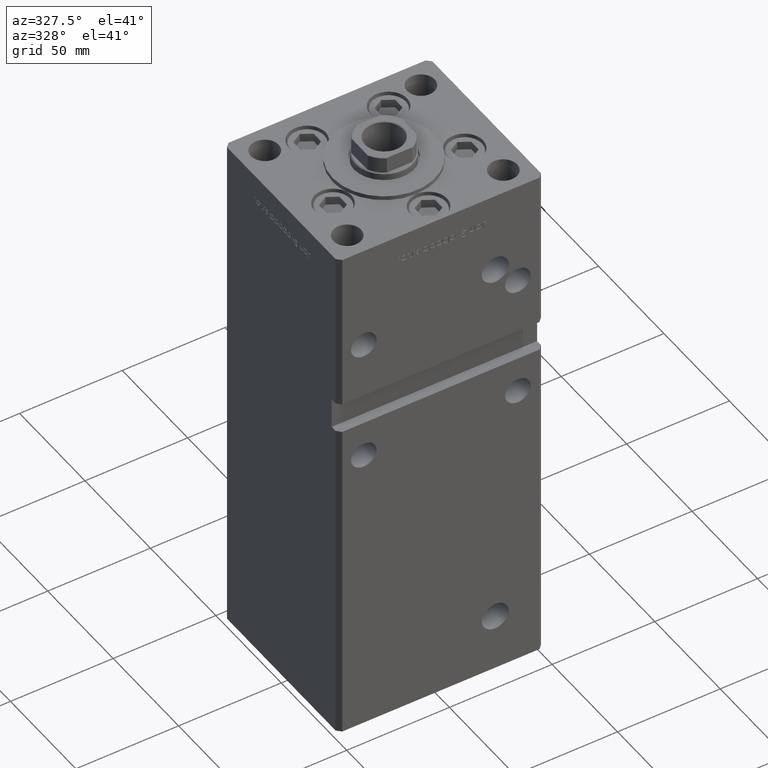
[diagram: clean part render]
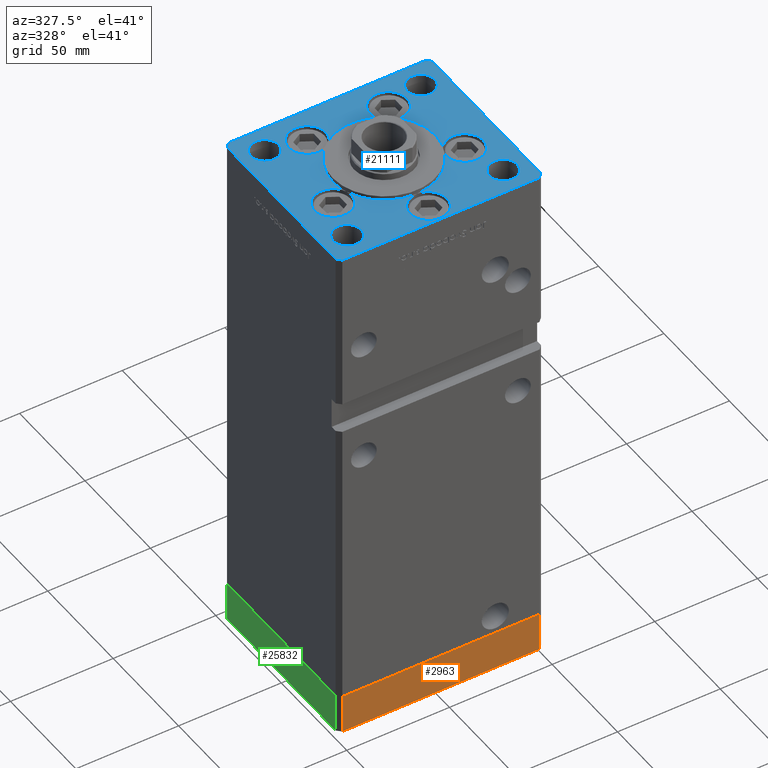
[diagram: same view with three faces highlighted in distinct colors, each labeled with its STEP entity id]
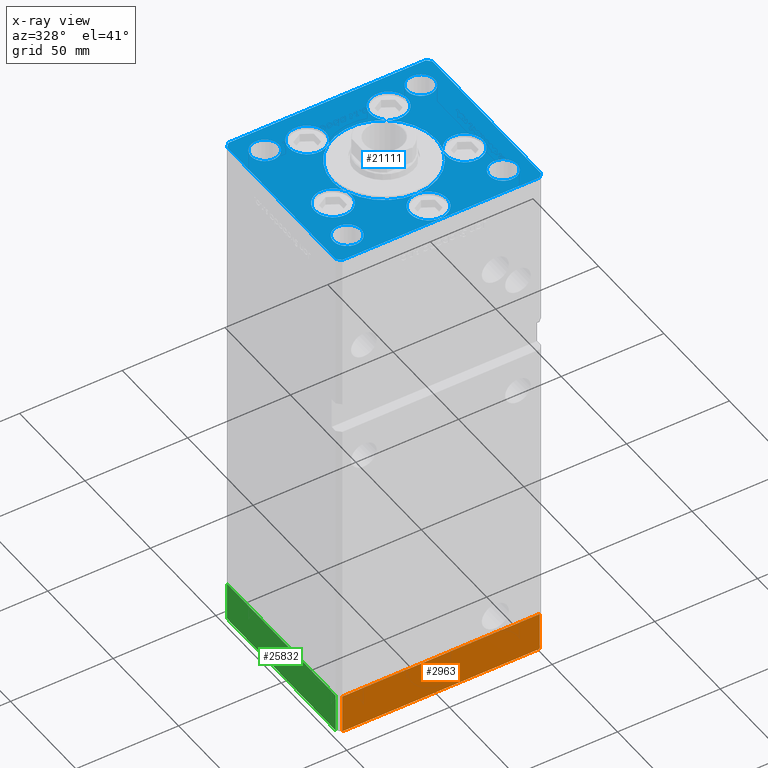
[diagram: x-ray of the same camera — body ghosted, the three highlighted faces saturated]
A machine part, auxiliary view with three faces highlighted in distinct colors.
The next image is the same camera in x-ray (body ghosted, the three faces saturated) — at least one of them is partly hidden behind the body in this view.
Their STEP definitions:

[orange] entity #2963 — the highlighted planar face has unit normal (0, -1, -0).
#172 = VERTEX_POINT ( 'NONE', #3206 ) ;
#551 = EDGE_CURVE ( 'NONE', #24791, #22917, #25624, .T. ) ;
#1128 = EDGE_CURVE ( 'NONE', #172, #24791, #41357, .T. ) ;
#2963 = ADVANCED_FACE ( 'NONE', ( #13362 ), #47674, .T. ) ;
#3206 = CARTESIAN_POINT ( 'NONE',  ( -47.99999999999999289, -43.50000000000001421, -19.00000000000000000 ) ) ;
#5318 = ORIENTED_EDGE ( 'NONE', *, *, #24260, .T. ) ;
#9600 = CARTESIAN_POINT ( 'NONE',  ( -47.99999999999999289, -43.50000000000001421, -19.00000000000000000 ) ) ;
#13362 = FACE_OUTER_BOUND ( 'NONE', #43471, .T. ) ;
#14062 = LINE ( 'NONE', #46605, #45739 ) ;
#14321 = DIRECTION ( 'NONE',  ( 0.000000000000000000, 0.000000000000000000, 1.000000000000000000 ) ) ;
#14949 = VECTOR ( 'NONE', #20790, 1000.000000000000000 ) ;
#19037 = VECTOR ( 'NONE', #26161, 1000.000000000000000 ) ;
#20790 = DIRECTION ( 'NONE',  ( 1.000000000000000000, 0.000000000000000000, 0.000000000000000000 ) ) ;
#20936 = CARTESIAN_POINT ( 'NONE',  ( -47.99999999999999289, -43.50000000000001421, -19.00000000000000000 ) ) ;
#21843 = LINE ( 'NONE', #41996, #14949 ) ;
#21856 = CARTESIAN_POINT ( 'NONE',  ( -47.99999999999999289, -43.50000000000001421, 0.000000000000000000 ) ) ;
#22786 = ORIENTED_EDGE ( 'NONE', *, *, #1128, .F. ) ;
#22917 = VERTEX_POINT ( 'NONE', #35061 ) ;
#24260 = EDGE_CURVE ( 'NONE', #28784, #22917, #14062, .T. ) ;
#24698 = ORIENTED_EDGE ( 'NONE', *, *, #27667, .T. ) ;
#24791 = VERTEX_POINT ( 'NONE', #51291 ) ;
#25624 = LINE ( 'NONE', #21856, #19037 ) ;
#26161 = DIRECTION ( 'NONE',  ( 1.000000000000000000, 0.000000000000000000, 0.000000000000000000 ) ) ;
#27251 = DIRECTION ( 'NONE',  ( 0.000000000000000000, -0.000000000000000000, -1.000000000000000000 ) ) ;
#27667 = EDGE_CURVE ( 'NONE', #172, #28784, #21843, .T. ) ;
#28784 = VERTEX_POINT ( 'NONE', #40383 ) ;
#29329 = VECTOR ( 'NONE', #49683, 1000.000000000000000 ) ;
#29765 = DIRECTION ( 'NONE',  ( 0.000000000000000000, -1.000000000000000000, 0.000000000000000000 ) ) ;
#35061 = CARTESIAN_POINT ( 'NONE',  ( 47.99999999999999289, -43.50000000000001421, 0.000000000000000000 ) ) ;
#40383 = CARTESIAN_POINT ( 'NONE',  ( 47.99999999999999289, -43.50000000000001421, -19.00000000000000000 ) ) ;
#41357 = LINE ( 'NONE', #20936, #29329 ) ;
#41996 = CARTESIAN_POINT ( 'NONE',  ( -47.99999999999999289, -43.50000000000001421, -19.00000000000000000 ) ) ;
#43471 = EDGE_LOOP ( 'NONE', ( #43681, #22786, #24698, #5318 ) ) ;
#43681 = ORIENTED_EDGE ( 'NONE', *, *, #551, .F. ) ;
#45739 = VECTOR ( 'NONE', #14321, 1000.000000000000000 ) ;
#46605 = CARTESIAN_POINT ( 'NONE',  ( 47.99999999999999289, -43.50000000000001421, -19.00000000000000000 ) ) ;
#47674 = PLANE ( 'NONE',  #51719 ) ;
#49683 = DIRECTION ( 'NONE',  ( 0.000000000000000000, 0.000000000000000000, 1.000000000000000000 ) ) ;
#51291 = CARTESIAN_POINT ( 'NONE',  ( -47.99999999999999289, -43.50000000000001421, 0.000000000000000000 ) ) ;
#51719 = AXIS2_PLACEMENT_3D ( 'NONE', #9600, #29765, #27251 ) ;

[blue] entity #21111 — the highlighted planar face has unit normal (0, 0, 1).
#309 = AXIS2_PLACEMENT_3D ( 'NONE', #47411, #43127, #39096 ) ;
#796 = DIRECTION ( 'NONE',  ( 0.000000000000000000, 0.000000000000000000, 1.000000000000000000 ) ) ;
#879 = AXIS2_PLACEMENT_3D ( 'NONE', #40290, #39754, #15004 ) ;
#949 = DIRECTION ( 'NONE',  ( 1.000000000000000000, 0.000000000000000000, 0.000000000000000000 ) ) ;
#1319 = DIRECTION ( 'NONE',  ( 0.000000000000000000, 0.000000000000000000, 1.000000000000000000 ) ) ;
#1372 = CIRCLE ( 'NONE', #16806, 6.749999999999999112 ) ;
#1483 = CIRCLE ( 'NONE', #34969, 6.749999999999999112 ) ;
#1599 = CIRCLE ( 'NONE', #42789, 25.00000000000000000 ) ;
#1770 = LINE ( 'NONE', #18179, #10555 ) ;
#1989 = DIRECTION ( 'NONE',  ( 1.000000000000000000, 0.000000000000000000, 0.000000000000000000 ) ) ;
#2031 = FACE_BOUND ( 'NONE', #13630, .T. ) ;
#2519 = CARTESIAN_POINT ( 'NONE',  ( -38.00000000000000711, -31.50000000000000711, 0.000000000000000000 ) ) ;
#2574 = EDGE_CURVE ( 'NONE', #33097, #25883, #7838, .T. ) ;
#2641 = CIRCLE ( 'NONE', #45584, 9.000000000000001776 ) ;
#2706 = CARTESIAN_POINT ( 'NONE',  ( 50.00000000000000000, -41.49999999999992895, 0.000000000000000000 ) ) ;
#2721 = AXIS2_PLACEMENT_3D ( 'NONE', #12228, #11955, #28368 ) ;
#2900 = DIRECTION ( 'NONE',  ( 0.000000000000000000, 0.000000000000000000, 1.000000000000000000 ) ) ;
#3015 = ORIENTED_EDGE ( 'NONE', *, *, #45752, .F. ) ;
#3157 = EDGE_CURVE ( 'NONE', #25883, #20605, #25868, .T. ) ;
#3192 = CARTESIAN_POINT ( 'NONE',  ( 0.000000000000000000, -6.938893903907228378E-15, 0.000000000000000000 ) ) ;
#3235 = VERTEX_POINT ( 'NONE', #37688 ) ;
#3426 = VERTEX_POINT ( 'NONE', #52710 ) ;
#3530 = ORIENTED_EDGE ( 'NONE', *, *, #48327, .F. ) ;
#3572 = CARTESIAN_POINT ( 'NONE',  ( 0.000000000000000000, -6.938893903907228378E-15, 0.000000000000000000 ) ) ;
#3577 = CIRCLE ( 'NONE', #45631, 9.000000000000001776 ) ;
#3652 = AXIS2_PLACEMENT_3D ( 'NONE', #38110, #13905, #25739 ) ;
#3844 = AXIS2_PLACEMENT_3D ( 'NONE', #31564, #15407, #31832 ) ;
#4311 = CARTESIAN_POINT ( 'NONE',  ( 19.82068048781374969, 27.62499999999998934, 0.000000000000000000 ) ) ;
#4381 = LINE ( 'NONE', #45500, #51001 ) ;
#4436 = CARTESIAN_POINT ( 'NONE',  ( -19.82068048781374969, 27.62499999999998934, 0.000000000000000000 ) ) ;
#4602 = CIRCLE ( 'NONE', #15767, 25.00000000000000000 ) ;
#5033 = EDGE_CURVE ( 'NONE', #39456, #20355, #42249, .T. ) ;
#5043 = CARTESIAN_POINT ( 'NONE',  ( -10.82068048781375147, 27.62499999999998934, 0.000000000000000000 ) ) ;
#5143 = CIRCLE ( 'NONE', #35331, 8.999999999999998224 ) ;
#5180 = ORIENTED_EDGE ( 'NONE', *, *, #17089, .T. ) ;
#5185 = CIRCLE ( 'NONE', #24083, 6.749999999999999112 ) ;
#5220 = ORIENTED_EDGE ( 'NONE', *, *, #49229, .F. ) ;
#5289 = CARTESIAN_POINT ( 'NONE',  ( -44.75000000000000000, 31.50000000000000000, 0.000000000000000000 ) ) ;
#5351 = CARTESIAN_POINT ( 'NONE',  ( 44.75000000000000711, -31.50000000000000711, 0.000000000000000000 ) ) ;
#5371 = ORIENTED_EDGE ( 'NONE', *, *, #9953, .F. ) ;
#5683 = CARTESIAN_POINT ( 'NONE',  ( -48.00000000000000000, 43.49999999999997158, 0.000000000000000000 ) ) ;
#5780 = EDGE_CURVE ( 'NONE', #33097, #13847, #9635, .T. ) ;
#5792 = VERTEX_POINT ( 'NONE', #2706 ) ;
#5879 = CARTESIAN_POINT ( 'NONE',  ( -50.00000000000000000, -41.50000000000004263, 0.000000000000000000 ) ) ;
#5909 = AXIS2_PLACEMENT_3D ( 'NONE', #3572, #28057, #44174 ) ;
#5980 = VERTEX_POINT ( 'NONE', #10458 ) ;
#6173 = DIRECTION ( 'NONE',  ( 0.000000000000000000, 0.000000000000000000, 1.000000000000000000 ) ) ;
#6229 = AXIS2_PLACEMENT_3D ( 'NONE', #36114, #52496, #15671 ) ;
#6489 = CARTESIAN_POINT ( 'NONE',  ( -23.05550741379015633, -11.33333333333332860, 0.000000000000000000 ) ) ;
#6917 = DIRECTION ( 'NONE',  ( 0.000000000000000000, 0.000000000000000000, 1.000000000000000000 ) ) ;
#7105 = LINE ( 'NONE', #7646, #29776 ) ;
#7248 = EDGE_CURVE ( 'NONE', #25883, #51566, #32864, .T. ) ;
#7399 = FACE_BOUND ( 'NONE', #42107, .T. ) ;
#7475 = CARTESIAN_POINT ( 'NONE',  ( -25.00000000000000000, -6.938893903907228378E-15, 0.000000000000000000 ) ) ;
#7646 = CARTESIAN_POINT ( 'NONE',  ( 48.00000000000000711, -43.49999999999992184, 0.000000000000000000 ) ) ;
#7650 = ORIENTED_EDGE ( 'NONE', *, *, #41239, .T. ) ;
#7749 = CIRCLE ( 'NONE', #44660, 8.999999999999998224 ) ;
#7781 = CARTESIAN_POINT ( 'NONE',  ( 32.05550741379015989, -11.33333333333332860, 0.000000000000000000 ) ) ;
#7822 = ORIENTED_EDGE ( 'NONE', *, *, #40016, .T. ) ;
#7827 = DIRECTION ( 'NONE',  ( 1.000000000000000000, 0.000000000000000000, 0.000000000000000000 ) ) ;
#7838 = CIRCLE ( 'NONE', #42169, 25.00000000000000000 ) ;
#8003 = VERTEX_POINT ( 'NONE', #33713 ) ;
#8111 = ORIENTED_EDGE ( 'NONE', *, *, #18438, .F. ) ;
#8129 = ORIENTED_EDGE ( 'NONE', *, *, #20881, .F. ) ;
#8234 = CARTESIAN_POINT ( 'NONE',  ( 0.000000000000000000, -6.938893903907228378E-15, 0.000000000000000000 ) ) ;
#8254 = DIRECTION ( 'NONE',  ( 0.000000000000000000, 0.000000000000000000, 1.000000000000000000 ) ) ;
#8275 = CARTESIAN_POINT ( 'NONE',  ( -38.00000000000000711, -31.50000000000000711, 0.000000000000000000 ) ) ;
#8531 = CARTESIAN_POINT ( 'NONE',  ( 31.25000000000000000, 31.50000000000000000, 0.000000000000000000 ) ) ;
#8638 = VECTOR ( 'NONE', #46181, 999.9999999999998863 ) ;
#8693 = ORIENTED_EDGE ( 'NONE', *, *, #40565, .F. ) ;
#8773 = ORIENTED_EDGE ( 'NONE', *, *, #14130, .T. ) ;
#8884 = EDGE_CURVE ( 'NONE', #3426, #34056, #1770, .T. ) ;
#9589 = VERTEX_POINT ( 'NONE', #53156 ) ;
#9624 = CARTESIAN_POINT ( 'NONE',  ( -38.00000000000000000, 31.50000000000000000, 0.000000000000000000 ) ) ;
#9635 = CIRCLE ( 'NONE', #36243, 9.000000000000001776 ) ;
#9746 = ORIENTED_EDGE ( 'NONE', *, *, #7248, .F. ) ;
#9753 = CIRCLE ( 'NONE', #309, 9.000000000000000000 ) ;
#9867 = VECTOR ( 'NONE', #12503, 1000.000000000000000 ) ;
#9886 = EDGE_LOOP ( 'NONE', ( #16960, #29587, #5220, #35883, #3015, #47245, #3530, #25754, #30757, #9746, #8693, #27200, #46546, #24341, #27784, #8111, #25181, #21043, #8129, #29127, #40532, #5371 ) ) ;
#9953 = EDGE_CURVE ( 'NONE', #26033, #39456, #21766, .T. ) ;
#10130 = EDGE_CURVE ( 'NONE', #20605, #29973, #9753, .T. ) ;
#10458 = CARTESIAN_POINT ( 'NONE',  ( 23.05550741379015633, -11.33333333333332682, 0.000000000000000000 ) ) ;
#10555 = VECTOR ( 'NONE', #29488, 1000.000000000000000 ) ;
#10891 = FACE_BOUND ( 'NONE', #9886, .T. ) ;
#11221 = DIRECTION ( 'NONE',  ( 1.000000000000000000, 0.000000000000000000, 0.000000000000000000 ) ) ;
#11650 = DIRECTION ( 'NONE',  ( 0.000000000000000000, 0.000000000000000000, 1.000000000000000000 ) ) ;
#11651 = DIRECTION ( 'NONE',  ( 0.000000000000000000, 0.000000000000000000, 1.000000000000000000 ) ) ;
#11895 = EDGE_CURVE ( 'NONE', #5980, #22736, #49303, .T. ) ;
#11926 = DIRECTION ( 'NONE',  ( 0.000000000000000000, 0.000000000000000000, 1.000000000000000000 ) ) ;
#11955 = DIRECTION ( 'NONE',  ( -0.000000000000000000, 0.000000000000000000, 1.000000000000000000 ) ) ;
#12004 = ORIENTED_EDGE ( 'NONE', *, *, #34899, .T. ) ;
#12200 = EDGE_CURVE ( 'NONE', #29769, #27571, #32868, .T. ) ;
#12211 = AXIS2_PLACEMENT_3D ( 'NONE', #12523, #36480, #41277 ) ;
#12228 = CARTESIAN_POINT ( 'NONE',  ( 0.000000000000000000, 0.000000000000000000, 0.000000000000000000 ) ) ;
#12503 = DIRECTION ( 'NONE',  ( 8.360113137237620037E-17, -1.000000000000000000, 0.000000000000000000 ) ) ;
#12523 = CARTESIAN_POINT ( 'NONE',  ( -19.82068048781374969, 27.62499999999998934, 0.000000000000000000 ) ) ;
#12742 = CARTESIAN_POINT ( 'NONE',  ( 32.05550741379015989, -11.33333333333332860, 0.000000000000000000 ) ) ;
#12920 = CARTESIAN_POINT ( 'NONE',  ( -38.00000000000000000, 31.50000000000000000, 0.000000000000000000 ) ) ;
#13381 = VECTOR ( 'NONE', #27451, 1000.000000000000000 ) ;
#13630 = EDGE_LOOP ( 'NONE', ( #31645, #30264 ) ) ;
#13847 = VERTEX_POINT ( 'NONE', #28145 ) ;
#13905 = DIRECTION ( 'NONE',  ( 0.000000000000000000, 0.000000000000000000, 1.000000000000000000 ) ) ;
#14130 = EDGE_CURVE ( 'NONE', #30044, #42323, #27020, .T. ) ;
#14233 = CIRCLE ( 'NONE', #52865, 25.00000000000000000 ) ;
#14386 = FACE_OUTER_BOUND ( 'NONE', #18215, .T. ) ;
#14526 = EDGE_CURVE ( 'NONE', #44332, #42694, #30134, .T. ) ;
#14710 = DIRECTION ( 'NONE',  ( 0.7071067811865487940, -0.7071067811865463515, 0.000000000000000000 ) ) ;
#15004 = DIRECTION ( 'NONE',  ( 1.000000000000000000, 0.000000000000000000, 0.000000000000000000 ) ) ;
#15389 = DIRECTION ( 'NONE',  ( 1.000000000000000000, 0.000000000000000000, 0.000000000000000000 ) ) ;
#15407 = DIRECTION ( 'NONE',  ( -0.000000000000000000, -0.000000000000000000, -1.000000000000000000 ) ) ;
#15451 = EDGE_CURVE ( 'NONE', #51566, #5980, #3577, .T. ) ;
#15509 = DIRECTION ( 'NONE',  ( 1.000000000000000000, 0.000000000000000000, 0.000000000000000000 ) ) ;
#15597 = DIRECTION ( 'NONE',  ( 1.000000000000000000, 0.000000000000000000, 0.000000000000000000 ) ) ;
#15671 = DIRECTION ( 'NONE',  ( 1.000000000000000000, 0.000000000000000000, 0.000000000000000000 ) ) ;
#15713 = PLANE ( 'NONE',  #2721 ) ;
#15763 = DIRECTION ( 'NONE',  ( 1.000000000000000000, 0.000000000000000000, 0.000000000000000000 ) ) ;
#15767 = AXIS2_PLACEMENT_3D ( 'NONE', #3192, #6173, #18541 ) ;
#16152 = ORIENTED_EDGE ( 'NONE', *, *, #12200, .T. ) ;
#16806 = AXIS2_PLACEMENT_3D ( 'NONE', #52491, #11650, #40410 ) ;
#16960 = ORIENTED_EDGE ( 'NONE', *, *, #26879, .F. ) ;
#17057 = DIRECTION ( 'NONE',  ( 1.000000000000000000, 0.000000000000000000, 0.000000000000000000 ) ) ;
#17089 = EDGE_CURVE ( 'NONE', #40975, #18568, #17413, .T. ) ;
#17220 = ORIENTED_EDGE ( 'NONE', *, *, #37268, .T. ) ;
#17413 = LINE ( 'NONE', #46452, #8638 ) ;
#17716 = CARTESIAN_POINT ( 'NONE',  ( -23.57022603955158502, -8.333333333333332149, 0.000000000000000000 ) ) ;
#17941 = DIRECTION ( 'NONE',  ( -0.000000000000000000, -0.000000000000000000, -1.000000000000000000 ) ) ;
#18079 = CARTESIAN_POINT ( 'NONE',  ( 50.00000000000000000, 41.50000000000000711, 0.000000000000000000 ) ) ;
#18134 = AXIS2_PLACEMENT_3D ( 'NONE', #42600, #39345, #1989 ) ;
#18179 = CARTESIAN_POINT ( 'NONE',  ( -48.00000000000000711, -43.50000000000002842, 0.000000000000000000 ) ) ;
#18215 = EDGE_LOOP ( 'NONE', ( #48321, #37707, #7822, #17220, #5180, #35243, #16152, #12004 ) ) ;
#18423 = AXIS2_PLACEMENT_3D ( 'NONE', #12742, #29147, #45529 ) ;
#18438 = EDGE_CURVE ( 'NONE', #13847, #22310, #2641, .T. ) ;
#18528 = CARTESIAN_POINT ( 'NONE',  ( -19.82068048781374969, 27.62499999999998934, 0.000000000000000000 ) ) ;
#18541 = DIRECTION ( 'NONE',  ( 1.000000000000000000, 0.000000000000000000, 0.000000000000000000 ) ) ;
#18568 = VERTEX_POINT ( 'NONE', #38990 ) ;
#18768 = CARTESIAN_POINT ( 'NONE',  ( 0.000000000000000000, -6.938893903907228378E-15, 0.000000000000000000 ) ) ;
#18917 = DIRECTION ( 'NONE',  ( 1.000000000000000000, 0.000000000000000000, 0.000000000000000000 ) ) ;
#18996 = EDGE_CURVE ( 'NONE', #21657, #21785, #19860, .T. ) ;
#19025 = LINE ( 'NONE', #5879, #35238 ) ;
#19076 = DIRECTION ( 'NONE',  ( 1.000000000000000000, 0.000000000000000000, 0.000000000000000000 ) ) ;
#19514 = LINE ( 'NONE', #32952, #9867 ) ;
#19644 = DIRECTION ( 'NONE',  ( 0.000000000000000000, 0.000000000000000000, 1.000000000000000000 ) ) ;
#19700 = ORIENTED_EDGE ( 'NONE', *, *, #14526, .T. ) ;
#19860 = CIRCLE ( 'NONE', #49869, 6.749999999999999112 ) ;
#20240 = CARTESIAN_POINT ( 'NONE',  ( -28.82068048781374969, 27.62499999999998934, 0.000000000000000000 ) ) ;
#20355 = VERTEX_POINT ( 'NONE', #20240 ) ;
#20605 = VERTEX_POINT ( 'NONE', #27294 ) ;
#20703 = CARTESIAN_POINT ( 'NONE',  ( 0.000000000000000000, -6.938893903907228378E-15, 0.000000000000000000 ) ) ;
#20881 = EDGE_CURVE ( 'NONE', #26033, #30116, #28497, .T. ) ;
#20880 = AXIS2_PLACEMENT_3D ( 'NONE', #8275, #31942, #15509 ) ;
#21043 = ORIENTED_EDGE ( 'NONE', *, *, #37982, .F. ) ;
#21048 = CARTESIAN_POINT ( 'NONE',  ( -50.00000000000000711, 41.49999999999999289, 0.000000000000000000 ) ) ;
#21111 = ADVANCED_FACE ( 'NONE', ( #10891, #7399, #31590, #2031, #14386, #48521 ), #15713, .T. ) ;
#21474 = CARTESIAN_POINT ( 'NONE',  ( 28.82068048781374969, 27.62499999999998934, 0.000000000000000000 ) ) ;
#21657 = VERTEX_POINT ( 'NONE', #8531 ) ;
#21659 = CARTESIAN_POINT ( 'NONE',  ( 38.00000000000000000, 31.50000000000000000, 0.000000000000000000 ) ) ;
#21766 = CIRCLE ( 'NONE', #29468, 9.000000000000000000 ) ;
#21785 = VERTEX_POINT ( 'NONE', #52019 ) ;
#22310 = VERTEX_POINT ( 'NONE', #6489 ) ;
#22736 = VERTEX_POINT ( 'NONE', #36722 ) ;
#22882 = CARTESIAN_POINT ( 'NONE',  ( 50.00000000000000000, -41.49999999999992895, 0.000000000000000000 ) ) ;
#23114 = VERTEX_POINT ( 'NONE', #30959 ) ;
#23412 = LINE ( 'NONE', #22882, #13381 ) ;
#23738 = CARTESIAN_POINT ( 'NONE',  ( 32.05550741379015989, -11.33333333333332860, 0.000000000000000000 ) ) ;
#24083 = AXIS2_PLACEMENT_3D ( 'NONE', #37829, #33811, #25736 ) ;
#24341 = ORIENTED_EDGE ( 'NONE', *, *, #2574, .F. ) ;
#24557 = CIRCLE ( 'NONE', #26293, 6.749999999999999112 ) ;
#24871 = DIRECTION ( 'NONE',  ( 1.000000000000000000, 0.000000000000000000, 0.000000000000000000 ) ) ;
#24935 = EDGE_CURVE ( 'NONE', #3235, #47708, #44063, .T. ) ;
#25181 = ORIENTED_EDGE ( 'NONE', *, *, #5780, .F. ) ;
#25359 = AXIS2_PLACEMENT_3D ( 'NONE', #18528, #1319, #34392 ) ;
#25720 = CARTESIAN_POINT ( 'NONE',  ( 0.000000000000000000, -25.00000000000000000, 0.000000000000000000 ) ) ;
#25736 = DIRECTION ( 'NONE',  ( -1.000000000000000000, 0.000000000000000000, 0.000000000000000000 ) ) ;
#25739 = DIRECTION ( 'NONE',  ( 1.000000000000000000, 0.000000000000000000, 0.000000000000000000 ) ) ;
#25754 = ORIENTED_EDGE ( 'NONE', *, *, #11895, .F. ) ;
#25868 = CIRCLE ( 'NONE', #6229, 9.000000000000000000 ) ;
#25883 = VERTEX_POINT ( 'NONE', #25720 ) ;
#26033 = VERTEX_POINT ( 'NONE', #47546 ) ;
#26293 = AXIS2_PLACEMENT_3D ( 'NONE', #2519, #11926, #18917 ) ;
#26718 = AXIS2_PLACEMENT_3D ( 'NONE', #9624, #17941, #49418 ) ;
#26879 = EDGE_CURVE ( 'NONE', #9589, #26033, #4602, .T. ) ;
#27020 = CIRCLE ( 'NONE', #3844, 6.749999999999999112 ) ;
#27200 = ORIENTED_EDGE ( 'NONE', *, *, #10130, .F. ) ;
#27294 = CARTESIAN_POINT ( 'NONE',  ( -9.000000000000000000, -34.00000000000000000, 0.000000000000000000 ) ) ;
#27410 = DIRECTION ( 'NONE',  ( 0.000000000000000000, 0.000000000000000000, 1.000000000000000000 ) ) ;
#27451 = DIRECTION ( 'NONE',  ( 0.000000000000000000, 1.000000000000000000, 0.000000000000000000 ) ) ;
#27571 = VERTEX_POINT ( 'NONE', #21048 ) ;
#27599 = EDGE_CURVE ( 'NONE', #18568, #29769, #4381, .T. ) ;
#27784 = ORIENTED_EDGE ( 'NONE', *, *, #49749, .F. ) ;
#28057 = DIRECTION ( 'NONE',  ( 0.000000000000000000, 0.000000000000000000, 1.000000000000000000 ) ) ;
#28145 = CARTESIAN_POINT ( 'NONE',  ( -41.05550741379015989, -11.33333333333332682, 0.000000000000000000 ) ) ;
#28273 = ORIENTED_EDGE ( 'NONE', *, *, #18996, .F. ) ;
#28368 = DIRECTION ( 'NONE',  ( 1.000000000000000000, 0.000000000000000000, 0.000000000000000000 ) ) ;
#28390 = DIRECTION ( 'NONE',  ( 0.000000000000000000, 0.000000000000000000, 1.000000000000000000 ) ) ;
#28497 = CIRCLE ( 'NONE', #43104, 25.00000000000000000 ) ;
#29042 = DIRECTION ( 'NONE',  ( 1.000000000000000000, 0.000000000000000000, 0.000000000000000000 ) ) ;
#29127 = ORIENTED_EDGE ( 'NONE', *, *, #36845, .F. ) ;
#29147 = DIRECTION ( 'NONE',  ( 0.000000000000000000, 0.000000000000000000, 1.000000000000000000 ) ) ;
#29335 = DIRECTION ( 'NONE',  ( -1.000000000000000000, 0.000000000000000000, 0.000000000000000000 ) ) ;
#29468 = AXIS2_PLACEMENT_3D ( 'NONE', #4436, #28390, #24871 ) ;
#29488 = DIRECTION ( 'NONE',  ( 1.000000000000000000, 1.156482317317871331E-15, 0.000000000000000000 ) ) ;
#29587 = ORIENTED_EDGE ( 'NONE', *, *, #51625, .F. ) ;
#29608 = CARTESIAN_POINT ( 'NONE',  ( -31.25000000000000000, 31.50000000000000000, 0.000000000000000000 ) ) ;
#29729 = DIRECTION ( 'NONE',  ( 0.000000000000000000, 0.000000000000000000, 1.000000000000000000 ) ) ;
#29769 = VERTEX_POINT ( 'NONE', #5683 ) ;
#29776 = VECTOR ( 'NONE', #40707, 1000.000000000000114 ) ;
#29973 = VERTEX_POINT ( 'NONE', #41114 ) ;
#30044 = VERTEX_POINT ( 'NONE', #5351 ) ;
#30116 = VERTEX_POINT ( 'NONE', #7475 ) ;
#30134 = CIRCLE ( 'NONE', #26718, 6.749999999999999112 ) ;
#30264 = ORIENTED_EDGE ( 'NONE', *, *, #24935, .F. ) ;
#30757 = ORIENTED_EDGE ( 'NONE', *, *, #15451, .F. ) ;
#30959 = CARTESIAN_POINT ( 'NONE',  ( -50.00000000000000000, -41.50000000000004263, 0.000000000000000000 ) ) ;
#31137 = CARTESIAN_POINT ( 'NONE',  ( -31.25000000000000711, -31.50000000000000711, 0.000000000000000000 ) ) ;
#31543 = CARTESIAN_POINT ( 'NONE',  ( 19.82068048781374969, 27.62499999999998934, 0.000000000000000000 ) ) ;
#31564 = CARTESIAN_POINT ( 'NONE',  ( 38.00000000000000711, -31.50000000000000711, 0.000000000000000000 ) ) ;
#31590 = FACE_BOUND ( 'NONE', #51542, .T. ) ;
#31645 = ORIENTED_EDGE ( 'NONE', *, *, #39210, .F. ) ;
#31832 = DIRECTION ( 'NONE',  ( -1.000000000000000000, 0.000000000000000000, 0.000000000000000000 ) ) ;
#31942 = DIRECTION ( 'NONE',  ( 0.000000000000000000, 0.000000000000000000, 1.000000000000000000 ) ) ;
#32864 = CIRCLE ( 'NONE', #3652, 25.00000000000000000 ) ;
#32868 = LINE ( 'NONE', #49249, #47578 ) ;
#32952 = CARTESIAN_POINT ( 'NONE',  ( -50.00000000000000711, 41.49999999999999289, 0.000000000000000000 ) ) ;
#33097 = VERTEX_POINT ( 'NONE', #17716 ) ;
#33323 = EDGE_CURVE ( 'NONE', #21785, #21657, #1372, .T. ) ;
#33467 = CARTESIAN_POINT ( 'NONE',  ( 23.57022603955158502, -8.333333333333332149, 0.000000000000000000 ) ) ;
#33486 = AXIS2_PLACEMENT_3D ( 'NONE', #23738, #48466, #44166 ) ;
#33713 = CARTESIAN_POINT ( 'NONE',  ( 10.82068048781375147, 27.62499999999998934, 0.000000000000000000 ) ) ;
#33811 = DIRECTION ( 'NONE',  ( -0.000000000000000000, -0.000000000000000000, -1.000000000000000000 ) ) ;
#34056 = VERTEX_POINT ( 'NONE', #52817 ) ;
#34392 = DIRECTION ( 'NONE',  ( 1.000000000000000000, 0.000000000000000000, 0.000000000000000000 ) ) ;
#34899 = EDGE_CURVE ( 'NONE', #27571, #23114, #19514, .T. ) ;
#34969 = AXIS2_PLACEMENT_3D ( 'NONE', #12920, #49233, #29335 ) ;
#35193 = CARTESIAN_POINT ( 'NONE',  ( 25.00000000000000000, -3.877276906038844941E-15, 0.000000000000000000 ) ) ;
#35238 = VECTOR ( 'NONE', #14710, 1000.000000000000000 ) ;
#35243 = ORIENTED_EDGE ( 'NONE', *, *, #27599, .T. ) ;
#35331 = AXIS2_PLACEMENT_3D ( 'NONE', #4311, #796, #7827 ) ;
#35883 = ORIENTED_EDGE ( 'NONE', *, *, #52222, .F. ) ;
#36114 = CARTESIAN_POINT ( 'NONE',  ( 0.000000000000000000, -34.00000000000000000, 0.000000000000000000 ) ) ;
#36243 = AXIS2_PLACEMENT_3D ( 'NONE', #52155, #19644, #15597 ) ;
#36480 = DIRECTION ( 'NONE',  ( 0.000000000000000000, 0.000000000000000000, 1.000000000000000000 ) ) ;
#36722 = CARTESIAN_POINT ( 'NONE',  ( 41.05550741379015989, -11.33333333333332860, 0.000000000000000000 ) ) ;
#36836 = ORIENTED_EDGE ( 'NONE', *, *, #50064, .T. ) ;
#36845 = EDGE_CURVE ( 'NONE', #20355, #26033, #40803, .T. ) ;
#37105 = DIRECTION ( 'NONE',  ( 0.000000000000000000, 0.000000000000000000, 1.000000000000000000 ) ) ;
#37268 = EDGE_CURVE ( 'NONE', #5792, #40975, #23412, .T. ) ;
#37688 = CARTESIAN_POINT ( 'NONE',  ( -44.75000000000000711, -31.50000000000000711, 0.000000000000000000 ) ) ;
#37707 = ORIENTED_EDGE ( 'NONE', *, *, #8884, .T. ) ;
#37829 = CARTESIAN_POINT ( 'NONE',  ( 38.00000000000000711, -31.50000000000000711, 0.000000000000000000 ) ) ;
#37982 = EDGE_CURVE ( 'NONE', #30116, #33097, #14233, .T. ) ;
#38110 = CARTESIAN_POINT ( 'NONE',  ( 0.000000000000000000, -6.938893903907228378E-15, 0.000000000000000000 ) ) ;
#38859 = ORIENTED_EDGE ( 'NONE', *, *, #33323, .F. ) ;
#38990 = CARTESIAN_POINT ( 'NONE',  ( 47.99999999999999289, 43.50000000000000000, 0.000000000000000000 ) ) ;
#39096 = DIRECTION ( 'NONE',  ( 1.000000000000000000, 0.000000000000000000, 0.000000000000000000 ) ) ;
#39194 = CARTESIAN_POINT ( 'NONE',  ( 31.25000000000000711, -31.50000000000000711, 0.000000000000000000 ) ) ;
#39210 = EDGE_CURVE ( 'NONE', #47708, #3235, #24557, .T. ) ;
#39345 = DIRECTION ( 'NONE',  ( 0.000000000000000000, 0.000000000000000000, 1.000000000000000000 ) ) ;
#39389 = CIRCLE ( 'NONE', #5909, 25.00000000000000000 ) ;
#39456 = VERTEX_POINT ( 'NONE', #5043 ) ;
#39754 = DIRECTION ( 'NONE',  ( 0.000000000000000000, 0.000000000000000000, 1.000000000000000000 ) ) ;
#40016 = EDGE_CURVE ( 'NONE', #34056, #5792, #7105, .T. ) ;
#40290 = CARTESIAN_POINT ( 'NONE',  ( -32.05550741379015989, -11.33333333333332860, 0.000000000000000000 ) ) ;
#40410 = DIRECTION ( 'NONE',  ( 1.000000000000000000, 0.000000000000000000, 0.000000000000000000 ) ) ;
#40532 = ORIENTED_EDGE ( 'NONE', *, *, #5033, .F. ) ;
#40565 = EDGE_CURVE ( 'NONE', #29973, #25883, #41779, .T. ) ;
#40707 = DIRECTION ( 'NONE',  ( 0.7071067811865474617, 0.7071067811865474617, 0.000000000000000000 ) ) ;
#40803 = CIRCLE ( 'NONE', #25359, 9.000000000000000000 ) ;
#40975 = VERTEX_POINT ( 'NONE', #18079 ) ;
#41114 = CARTESIAN_POINT ( 'NONE',  ( 9.000000000000000000, -34.00000000000000000, 0.000000000000000000 ) ) ;
#41172 = DIRECTION ( 'NONE',  ( -0.7071067811865536790, -0.7071067811865414665, 0.000000000000000000 ) ) ;
#41239 = EDGE_CURVE ( 'NONE', #42694, #44332, #1483, .T. ) ;
#41277 = DIRECTION ( 'NONE',  ( 1.000000000000000000, 0.000000000000000000, 0.000000000000000000 ) ) ;
#41303 = CIRCLE ( 'NONE', #18134, 8.999999999999998224 ) ;
#41779 = CIRCLE ( 'NONE', #48654, 9.000000000000000000 ) ;
#42107 = EDGE_LOOP ( 'NONE', ( #7650, #19700 ) ) ;
#42169 = AXIS2_PLACEMENT_3D ( 'NONE', #20703, #37105, #29042 ) ;
#42249 = CIRCLE ( 'NONE', #12211, 9.000000000000000000 ) ;
#42323 = VERTEX_POINT ( 'NONE', #39194 ) ;
#42600 = CARTESIAN_POINT ( 'NONE',  ( 19.82068048781374969, 27.62499999999998934, 0.000000000000000000 ) ) ;
#42694 = VERTEX_POINT ( 'NONE', #29608 ) ;
#42789 = AXIS2_PLACEMENT_3D ( 'NONE', #18768, #2900, #43762 ) ;
#42930 = CIRCLE ( 'NONE', #33486, 9.000000000000001776 ) ;
#43104 = AXIS2_PLACEMENT_3D ( 'NONE', #51809, #6917, #11221 ) ;
#43127 = DIRECTION ( 'NONE',  ( 0.000000000000000000, 0.000000000000000000, 1.000000000000000000 ) ) ;
#43762 = DIRECTION ( 'NONE',  ( 1.000000000000000000, 0.000000000000000000, 0.000000000000000000 ) ) ;
#44063 = CIRCLE ( 'NONE', #20880, 6.749999999999999112 ) ;
#44166 = DIRECTION ( 'NONE',  ( 1.000000000000000000, 0.000000000000000000, 0.000000000000000000 ) ) ;
#44174 = DIRECTION ( 'NONE',  ( 1.000000000000000000, 0.000000000000000000, 0.000000000000000000 ) ) ;
#44332 = VERTEX_POINT ( 'NONE', #5289 ) ;
#44660 = AXIS2_PLACEMENT_3D ( 'NONE', #31543, #11651, #15389 ) ;
#45038 = VERTEX_POINT ( 'NONE', #21474 ) ;
#45107 = EDGE_CURVE ( 'NONE', #51566, #49750, #1599, .T. ) ;
#45500 = CARTESIAN_POINT ( 'NONE',  ( 47.99999999999999289, 43.50000000000000000, 0.000000000000000000 ) ) ;
#45529 = DIRECTION ( 'NONE',  ( 1.000000000000000000, 0.000000000000000000, 0.000000000000000000 ) ) ;
#45584 = AXIS2_PLACEMENT_3D ( 'NONE', #47831, #27410, #19076 ) ;
#45631 = AXIS2_PLACEMENT_3D ( 'NONE', #7781, #29729, #949 ) ;
#45752 = EDGE_CURVE ( 'NONE', #49750, #9589, #39389, .T. ) ;
#46035 = DIRECTION ( 'NONE',  ( -1.000000000000000000, -2.891205793294678326E-16, 0.000000000000000000 ) ) ;
#46181 = DIRECTION ( 'NONE',  ( -0.7071067811865512365, 0.7071067811865439090, 0.000000000000000000 ) ) ;
#46452 = CARTESIAN_POINT ( 'NONE',  ( 50.00000000000000000, 41.50000000000000711, 0.000000000000000000 ) ) ;
#46546 = ORIENTED_EDGE ( 'NONE', *, *, #3157, .F. ) ;
#47245 = ORIENTED_EDGE ( 'NONE', *, *, #45107, .F. ) ;
#47411 = CARTESIAN_POINT ( 'NONE',  ( 0.000000000000000000, -34.00000000000000000, 0.000000000000000000 ) ) ;
#47546 = CARTESIAN_POINT ( 'NONE',  ( -14.57402977045128978, 20.31249999999999289, 0.000000000000000000 ) ) ;
#47578 = VECTOR ( 'NONE', #41172, 1000.000000000000000 ) ;
#47694 = EDGE_CURVE ( 'NONE', #23114, #3426, #19025, .T. ) ;
#47708 = VERTEX_POINT ( 'NONE', #31137 ) ;
#47831 = CARTESIAN_POINT ( 'NONE',  ( -32.05550741379015989, -11.33333333333332860, 0.000000000000000000 ) ) ;
#48321 = ORIENTED_EDGE ( 'NONE', *, *, #47694, .T. ) ;
#48327 = EDGE_CURVE ( 'NONE', #22736, #51566, #42930, .T. ) ;
#48466 = DIRECTION ( 'NONE',  ( 0.000000000000000000, 0.000000000000000000, 1.000000000000000000 ) ) ;
#48521 = FACE_BOUND ( 'NONE', #50135, .T. ) ;
#48654 = AXIS2_PLACEMENT_3D ( 'NONE', #52592, #49100, #15763 ) ;
#49100 = DIRECTION ( 'NONE',  ( 0.000000000000000000, 0.000000000000000000, 1.000000000000000000 ) ) ;
#49104 = DIRECTION ( 'NONE',  ( 1.000000000000000000, 0.000000000000000000, 0.000000000000000000 ) ) ;
#49229 = EDGE_CURVE ( 'NONE', #45038, #8003, #7749, .T. ) ;
#49233 = DIRECTION ( 'NONE',  ( -0.000000000000000000, -0.000000000000000000, -1.000000000000000000 ) ) ;
#49249 = CARTESIAN_POINT ( 'NONE',  ( -48.00000000000000000, 43.49999999999997158, 0.000000000000000000 ) ) ;
#49303 = CIRCLE ( 'NONE', #18423, 9.000000000000001776 ) ;
#49418 = DIRECTION ( 'NONE',  ( -1.000000000000000000, 0.000000000000000000, 0.000000000000000000 ) ) ;
#49749 = EDGE_CURVE ( 'NONE', #22310, #33097, #52387, .T. ) ;
#49750 = VERTEX_POINT ( 'NONE', #35193 ) ;
#49869 = AXIS2_PLACEMENT_3D ( 'NONE', #21659, #8254, #49104 ) ;
#50064 = EDGE_CURVE ( 'NONE', #42323, #30044, #5185, .T. ) ;
#50135 = EDGE_LOOP ( 'NONE', ( #8773, #36836 ) ) ;
#51001 = VECTOR ( 'NONE', #46035, 1000.000000000000000 ) ;
#51542 = EDGE_LOOP ( 'NONE', ( #38859, #28273 ) ) ;
#51566 = VERTEX_POINT ( 'NONE', #33467 ) ;
#51625 = EDGE_CURVE ( 'NONE', #8003, #9589, #41303, .T. ) ;
#51809 = CARTESIAN_POINT ( 'NONE',  ( 0.000000000000000000, -6.938893903907228378E-15, 0.000000000000000000 ) ) ;
#52019 = CARTESIAN_POINT ( 'NONE',  ( 44.75000000000000000, 31.50000000000000000, 0.000000000000000000 ) ) ;
#52155 = CARTESIAN_POINT ( 'NONE',  ( -32.05550741379015989, -11.33333333333332860, 0.000000000000000000 ) ) ;
#52222 = EDGE_CURVE ( 'NONE', #9589, #45038, #5143, .T. ) ;
#52387 = CIRCLE ( 'NONE', #879, 9.000000000000001776 ) ;
#52491 = CARTESIAN_POINT ( 'NONE',  ( 38.00000000000000000, 31.50000000000000000, 0.000000000000000000 ) ) ;
#52496 = DIRECTION ( 'NONE',  ( 0.000000000000000000, 0.000000000000000000, 1.000000000000000000 ) ) ;
#52592 = CARTESIAN_POINT ( 'NONE',  ( 0.000000000000000000, -34.00000000000000000, 0.000000000000000000 ) ) ;
#52710 = CARTESIAN_POINT ( 'NONE',  ( -48.00000000000000711, -43.50000000000002842, 0.000000000000000000 ) ) ;
#52817 = CARTESIAN_POINT ( 'NONE',  ( 48.00000000000000711, -43.49999999999992184, 0.000000000000000000 ) ) ;
#52865 = AXIS2_PLACEMENT_3D ( 'NONE', #8234, #53098, #17057 ) ;
#53098 = DIRECTION ( 'NONE',  ( 0.000000000000000000, 0.000000000000000000, 1.000000000000000000 ) ) ;
#53156 = CARTESIAN_POINT ( 'NONE',  ( 14.57402977045128623, 20.31249999999998579, 0.000000000000000000 ) ) ;

[green] entity #25832 — the highlighted planar face has unit normal (-1, -0, 0).
#2002 = ORIENTED_EDGE ( 'NONE', *, *, #45625, .T. ) ;
#2686 = LINE ( 'NONE', #35499, #50450 ) ;
#7716 = ORIENTED_EDGE ( 'NONE', *, *, #34431, .T. ) ;
#9171 = VERTEX_POINT ( 'NONE', #37948 ) ;
#9874 = ORIENTED_EDGE ( 'NONE', *, *, #45980, .F. ) ;
#12568 = PLANE ( 'NONE',  #26026 ) ;
#12926 = VERTEX_POINT ( 'NONE', #23553 ) ;
#12937 = VERTEX_POINT ( 'NONE', #35929 ) ;
#21362 = VECTOR ( 'NONE', #46279, 1000.000000000000000 ) ;
#21888 = LINE ( 'NONE', #38300, #25621 ) ;
#23553 = CARTESIAN_POINT ( 'NONE',  ( 50.00000000000000000, -41.49999999999999289, 0.000000000000000000 ) ) ;
#25621 = VECTOR ( 'NONE', #29428, 1000.000000000000000 ) ;
#25832 = ADVANCED_FACE ( 'NONE', ( #49394 ), #12568, .T. ) ;
#26026 = AXIS2_PLACEMENT_3D ( 'NONE', #44848, #52890, #28973 ) ;
#26390 = CARTESIAN_POINT ( 'NONE',  ( 49.99999999999992184, 41.49999999999998579, -19.00000000000000000 ) ) ;
#28973 = DIRECTION ( 'NONE',  ( -1.003213576468515193E-15, 1.000000000000000000, 0.000000000000000000 ) ) ;
#29428 = DIRECTION ( 'NONE',  ( -1.003213576468515193E-15, 1.000000000000000000, 0.000000000000000000 ) ) ;
#33142 = LINE ( 'NONE', #41459, #21362 ) ;
#34431 = EDGE_CURVE ( 'NONE', #9171, #12937, #34994, .T. ) ;
#34994 = LINE ( 'NONE', #26390, #45916 ) ;
#35499 = CARTESIAN_POINT ( 'NONE',  ( 50.00000000000000000, -41.49999999999999289, -19.00000000000000000 ) ) ;
#35929 = CARTESIAN_POINT ( 'NONE',  ( 49.99999999999992184, 41.49999999999998579, 0.000000000000000000 ) ) ;
#37948 = CARTESIAN_POINT ( 'NONE',  ( 49.99999999999992184, 41.49999999999998579, -19.00000000000000000 ) ) ;
#38300 = CARTESIAN_POINT ( 'NONE',  ( 50.00000000000000000, -41.49999999999999289, -19.00000000000000000 ) ) ;
#40517 = CARTESIAN_POINT ( 'NONE',  ( 50.00000000000000000, -41.49999999999999289, -19.00000000000000000 ) ) ;
#40551 = VERTEX_POINT ( 'NONE', #40517 ) ;
#41459 = CARTESIAN_POINT ( 'NONE',  ( 50.00000000000000000, -41.49999999999999289, 0.000000000000000000 ) ) ;
#41847 = ORIENTED_EDGE ( 'NONE', *, *, #42977, .F. ) ;
#42977 = EDGE_CURVE ( 'NONE', #40551, #12926, #2686, .T. ) ;
#44624 = DIRECTION ( 'NONE',  ( 0.000000000000000000, 0.000000000000000000, 1.000000000000000000 ) ) ;
#44848 = CARTESIAN_POINT ( 'NONE',  ( 50.00000000000000000, -41.49999999999999289, -19.00000000000000000 ) ) ;
#45625 = EDGE_CURVE ( 'NONE', #40551, #9171, #21888, .T. ) ;
#45916 = VECTOR ( 'NONE', #46553, 1000.000000000000000 ) ;
#45980 = EDGE_CURVE ( 'NONE', #12926, #12937, #33142, .T. ) ;
#46279 = DIRECTION ( 'NONE',  ( -1.003213576468515193E-15, 1.000000000000000000, 0.000000000000000000 ) ) ;
#46553 = DIRECTION ( 'NONE',  ( 0.000000000000000000, 0.000000000000000000, 1.000000000000000000 ) ) ;
#48031 = EDGE_LOOP ( 'NONE', ( #9874, #41847, #2002, #7716 ) ) ;
#49394 = FACE_OUTER_BOUND ( 'NONE', #48031, .T. ) ;
#50450 = VECTOR ( 'NONE', #44624, 1000.000000000000000 ) ;
#52890 = DIRECTION ( 'NONE',  ( 1.000000000000000000, 1.003213576468515193E-15, -0.000000000000000000 ) ) ;